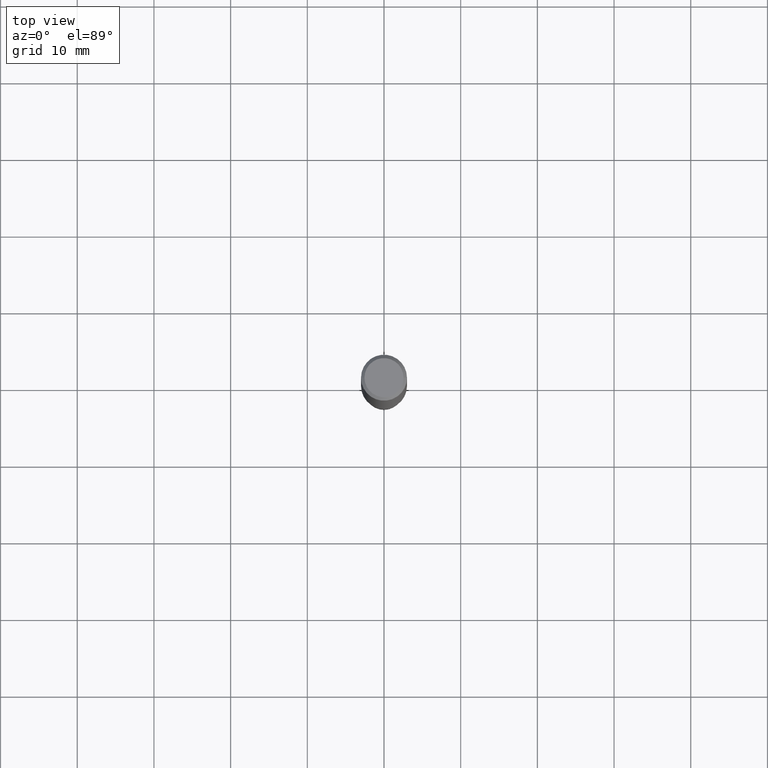
[diagram: clean part render]
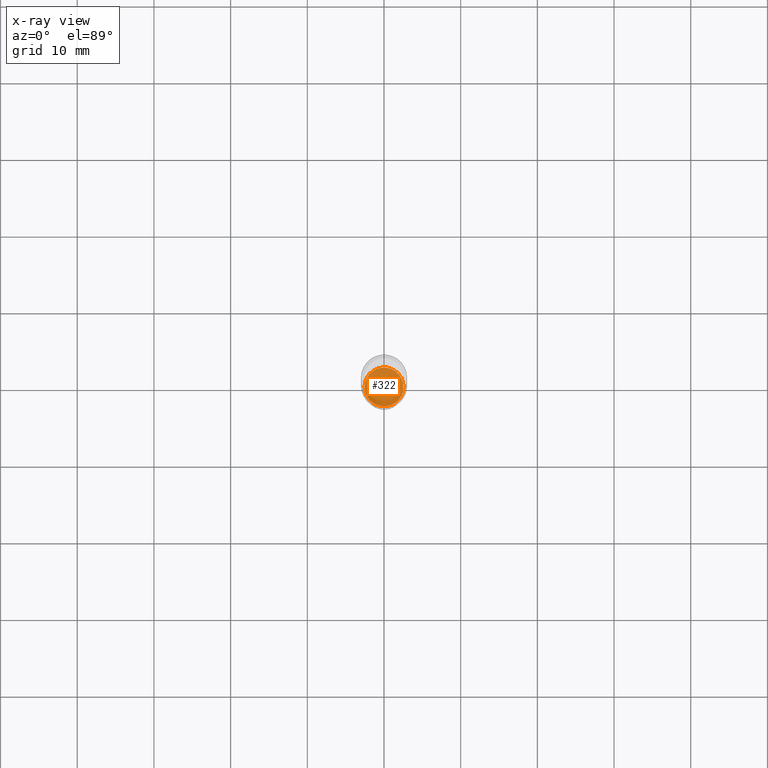
[diagram: x-ray — body ghosted, one internal face saturated and labeled with its STEP entity id]
A machine part, top view, then the same camera in x-ray: the body is ghosted and one INTERNAL B-rep face — a face not visible from any outside direction — is saturated and labeled: STEP entity #322.
In plain terms, the highlighted planar face has unit normal (-0, 0, 1).
Its self-contained STEP definition (entity closure, byte-faithful):
#8 = EDGE_LOOP ( 'NONE', ( #297, #386 ) ) ;
#12 = CARTESIAN_POINT ( 'NONE',  ( -0.09990000000000000269, -8.935179815292927924E-15, -2.763200000000000323 ) ) ;
#133 = DIRECTION ( 'NONE',  ( -2.438088387897960049E-29, 3.491481338843145188E-15, 1.000000000000000000 ) ) ;
#135 = EDGE_CURVE ( 'NONE', #299, #238, #349, .T. ) ;
#175 = AXIS2_PLACEMENT_3D ( 'NONE', #430, #133, #281 ) ;
#218 = DIRECTION ( 'NONE',  ( 1.000000000000000000, -6.982962677686267499E-15, 0.000000000000000000 ) ) ;
#229 = AXIS2_PLACEMENT_3D ( 'NONE', #276, #448, #273 ) ;
#238 = VERTEX_POINT ( 'NONE', #12 ) ;
#256 = CARTESIAN_POINT ( 'NONE',  ( 6.757319405250769322E-29, -9.647661235491380709E-15, -2.763200000000000323 ) ) ;
#271 = AXIS2_PLACEMENT_3D ( 'NONE', #256, #390, #218 ) ;
#273 = DIRECTION ( 'NONE',  ( 1.000000000000000000, -6.982962677686267499E-15, 0.000000000000000000 ) ) ;
#276 = CARTESIAN_POINT ( 'NONE',  ( 6.757319405250769322E-29, -9.647661235491380709E-15, -2.763200000000000323 ) ) ;
#281 = DIRECTION ( 'NONE',  ( 1.000000000000000000, -6.982962677686265922E-15, 4.876176775795935793E-29 ) ) ;
#297 = ORIENTED_EDGE ( 'NONE', *, *, #135, .F. ) ;
#299 = VERTEX_POINT ( 'NONE', #345 ) ;
#316 = CIRCLE ( 'NONE', #271, 0.09990000000000000269 ) ;
#322 = ADVANCED_FACE ( 'NONE', ( #422 ), #459, .F. ) ;
#345 = CARTESIAN_POINT ( 'NONE',  ( 0.09990000000000000269, -1.034525920699223878E-14, -2.763200000000000323 ) ) ;
#349 = CIRCLE ( 'NONE', #229, 0.09990000000000000269 ) ;
#386 = ORIENTED_EDGE ( 'NONE', *, *, #387, .F. ) ;
#387 = EDGE_CURVE ( 'NONE', #238, #299, #316, .T. ) ;
#390 = DIRECTION ( 'NONE',  ( -2.445468806185136597E-29, 3.491481338843145583E-15, 1.000000000000000000 ) ) ;
#422 = FACE_OUTER_BOUND ( 'NONE', #8, .T. ) ;
#430 = CARTESIAN_POINT ( 'NONE',  ( 6.757319405250769322E-29, -9.647661235491380709E-15, -2.763200000000000323 ) ) ;
#448 = DIRECTION ( 'NONE',  ( -2.445468806185136597E-29, 3.491481338843145583E-15, 1.000000000000000000 ) ) ;
#459 = PLANE ( 'NONE',  #175 ) ;